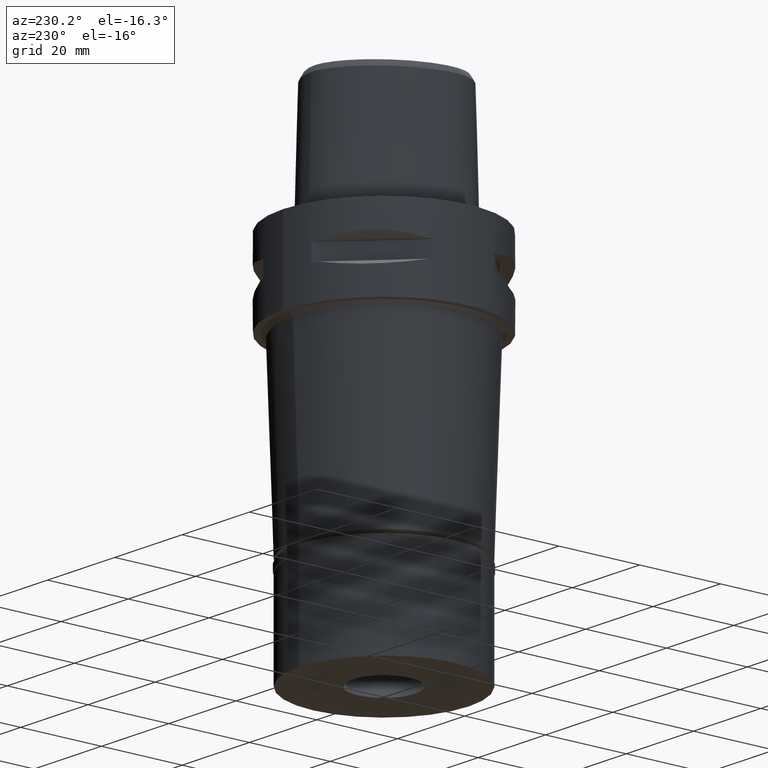
[diagram: clean part render]
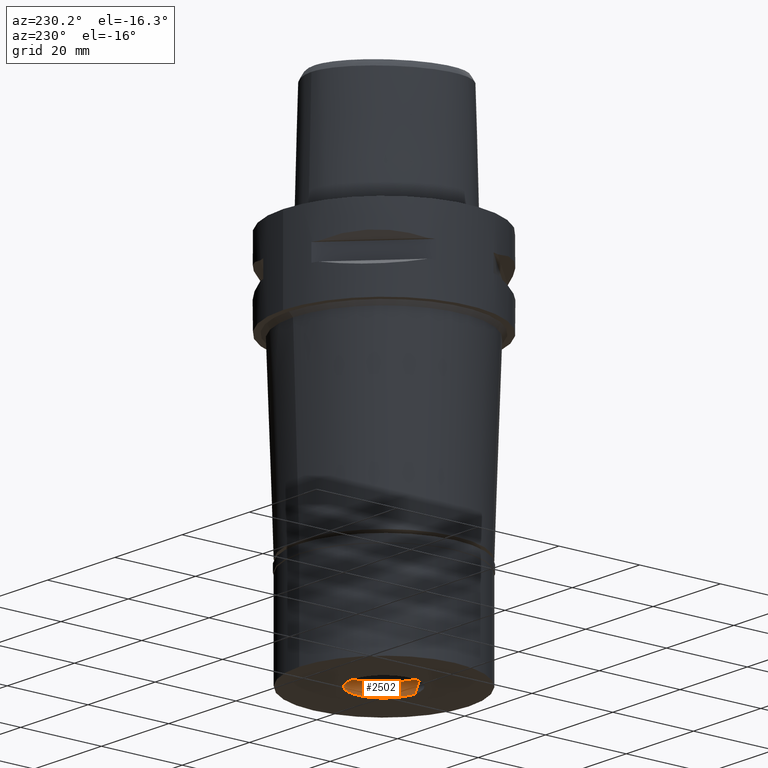
[diagram: same view with one face highlighted and labeled with its STEP entity id]
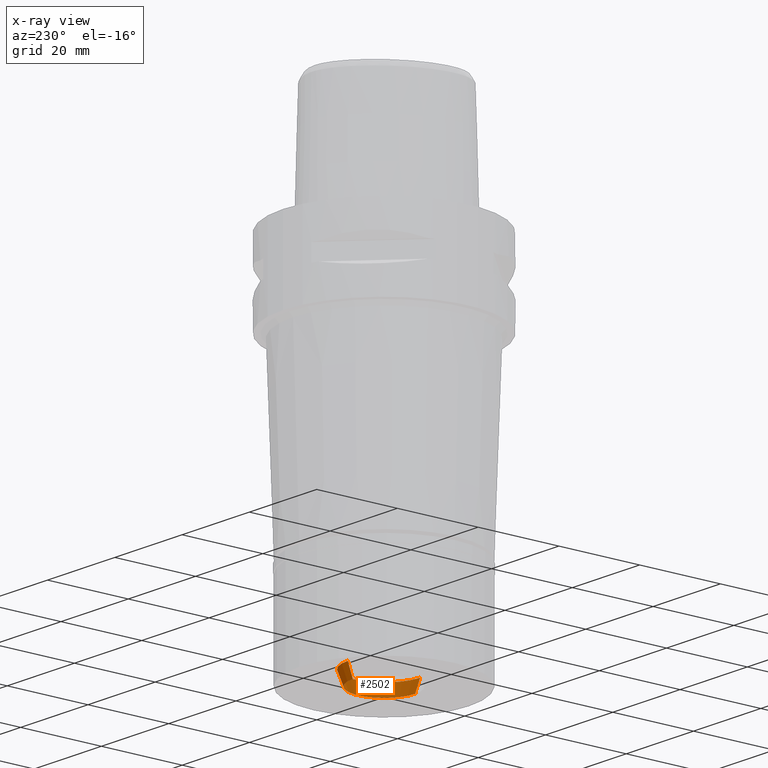
[diagram: x-ray of the same camera — body ghosted, the highlighted face saturated]
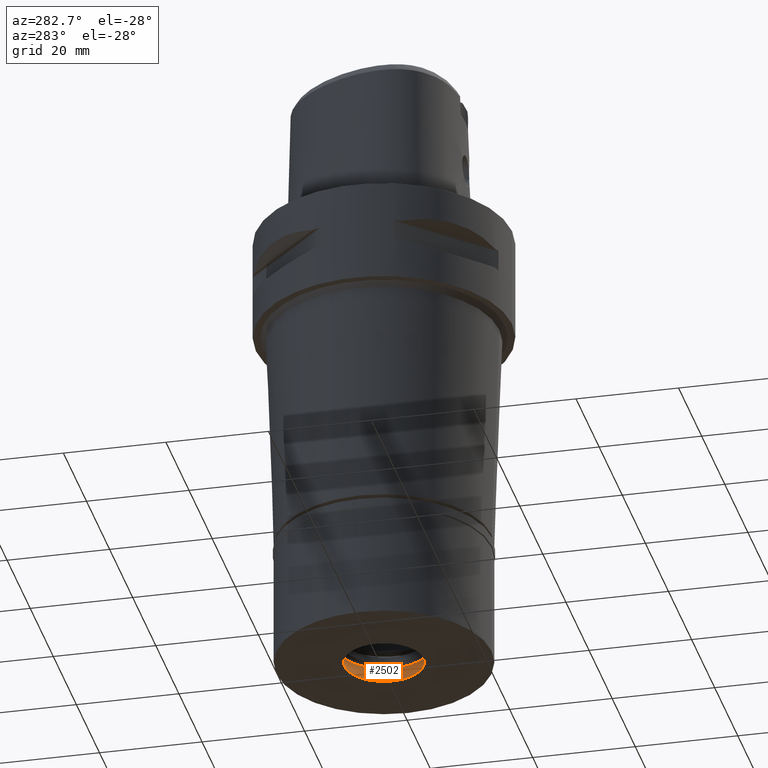
[diagram: same view with one face highlighted and labeled with its STEP entity id]
A machine part, auxiliary view. The second image highlights one B-rep face of the part: STEP entity #2502.
The next image is the same camera in x-ray: the body ghosted, the highlighted face saturated — about 0% of this face is hidden behind the body in this view.
A second angle (auxiliary view) of the same face is appended — the face is thin or edge-on in the first view.
In plain terms, the highlighted conical surface has half-angle 20 deg.
Its self-contained STEP definition (entity closure, byte-faithful):
#234 = CARTESIAN_POINT ( 'NONE',  ( 0.0000000000000000000, 7.700000000000000178, -24.29999999999999716 ) ) ;
#288 = FACE_OUTER_BOUND ( 'NONE', #2902, .T. ) ;
#463 = EDGE_CURVE ( 'NONE', #3722, #3412, #2821, .T. ) ;
#521 = VECTOR ( 'NONE', #2943, 1000.000000000000114 ) ;
#607 = CARTESIAN_POINT ( 'NONE',  ( 0.0000000000000000000, -7.700000000000000178, -24.29999999999999716 ) ) ;
#635 = DIRECTION ( 'NONE',  ( 0.0000000000000000000, 0.0000000000000000000, 1.000000000000000000 ) ) ;
#775 = CARTESIAN_POINT ( 'NONE',  ( 0.0000000000000000000, 0.0000000000000000000, -20.86565322567999914 ) ) ;
#1002 = CARTESIAN_POINT ( 'NONE',  ( 0.0000000000000000000, -8.949999999999999289, -20.86565322567999914 ) ) ;
#1015 = CONICAL_SURFACE ( 'NONE', #2197, 8.325000000000001066, 0.3490658503987996708 ) ;
#1034 = AXIS2_PLACEMENT_3D ( 'NONE', #4653, #3917, #2749 ) ;
#1090 = LINE ( 'NONE', #234, #3049 ) ;
#1587 = DIRECTION ( 'NONE',  ( 0.0000000000000000000, 0.0000000000000000000, -1.000000000000000000 ) ) ;
#1743 = ORIENTED_EDGE ( 'NONE', *, *, #3577, .F. ) ;
#1771 = VERTEX_POINT ( 'NONE', #1002 ) ;
#1799 = DIRECTION ( 'NONE',  ( 0.0000000000000000000, 0.3420201433256107038, 0.9396926207859295221 ) ) ;
#1858 = EDGE_CURVE ( 'NONE', #3412, #1771, #3665, .T. ) ;
#1905 = EDGE_CURVE ( 'NONE', #3722, #4023, #1090, .T. ) ;
#2040 = AXIS2_PLACEMENT_3D ( 'NONE', #775, #1587, #4105 ) ;
#2197 = AXIS2_PLACEMENT_3D ( 'NONE', #4408, #635, #2477 ) ;
#2292 = ORIENTED_EDGE ( 'NONE', *, *, #463, .T. ) ;
#2477 = DIRECTION ( 'NONE',  ( 0.0000000000000000000, 1.000000000000000000, 0.0000000000000000000 ) ) ;
#2502 = ADVANCED_FACE ( 'NONE', ( #288 ), #1015, .F. ) ;
#2542 = CARTESIAN_POINT ( 'NONE',  ( 0.0000000000000000000, 8.949999999999999289, -20.86565322567999914 ) ) ;
#2556 = ORIENTED_EDGE ( 'NONE', *, *, #1858, .T. ) ;
#2749 = DIRECTION ( 'NONE',  ( 0.0000000000000000000, 1.000000000000000000, 0.0000000000000000000 ) ) ;
#2821 = CIRCLE ( 'NONE', #1034, 7.700000000000000178 ) ;
#2885 = CARTESIAN_POINT ( 'NONE',  ( 0.0000000000000000000, -7.700000000000000178, -24.29999999999999716 ) ) ;
#2902 = EDGE_LOOP ( 'NONE', ( #2292, #2556, #1743, #4082 ) ) ;
#2943 = DIRECTION ( 'NONE',  ( 0.0000000000000000000, -0.3420201433256107038, 0.9396926207859295221 ) ) ;
#3049 = VECTOR ( 'NONE', #1799, 1000.000000000000114 ) ;
#3210 = CIRCLE ( 'NONE', #2040, 8.949999999999999289 ) ;
#3412 = VERTEX_POINT ( 'NONE', #2885 ) ;
#3577 = EDGE_CURVE ( 'NONE', #4023, #1771, #3210, .T. ) ;
#3665 = LINE ( 'NONE', #607, #521 ) ;
#3722 = VERTEX_POINT ( 'NONE', #4151 ) ;
#3917 = DIRECTION ( 'NONE',  ( 0.0000000000000000000, 0.0000000000000000000, -1.000000000000000000 ) ) ;
#4023 = VERTEX_POINT ( 'NONE', #2542 ) ;
#4082 = ORIENTED_EDGE ( 'NONE', *, *, #1905, .F. ) ;
#4105 = DIRECTION ( 'NONE',  ( 0.0000000000000000000, 1.000000000000000000, 0.0000000000000000000 ) ) ;
#4151 = CARTESIAN_POINT ( 'NONE',  ( 0.0000000000000000000, 7.700000000000000178, -24.29999999999999716 ) ) ;
#4408 = CARTESIAN_POINT ( 'NONE',  ( 0.0000000000000000000, 0.0000000000000000000, -22.58282661284000170 ) ) ;
#4653 = CARTESIAN_POINT ( 'NONE',  ( 0.0000000000000000000, 0.0000000000000000000, -24.29999999999999716 ) ) ;